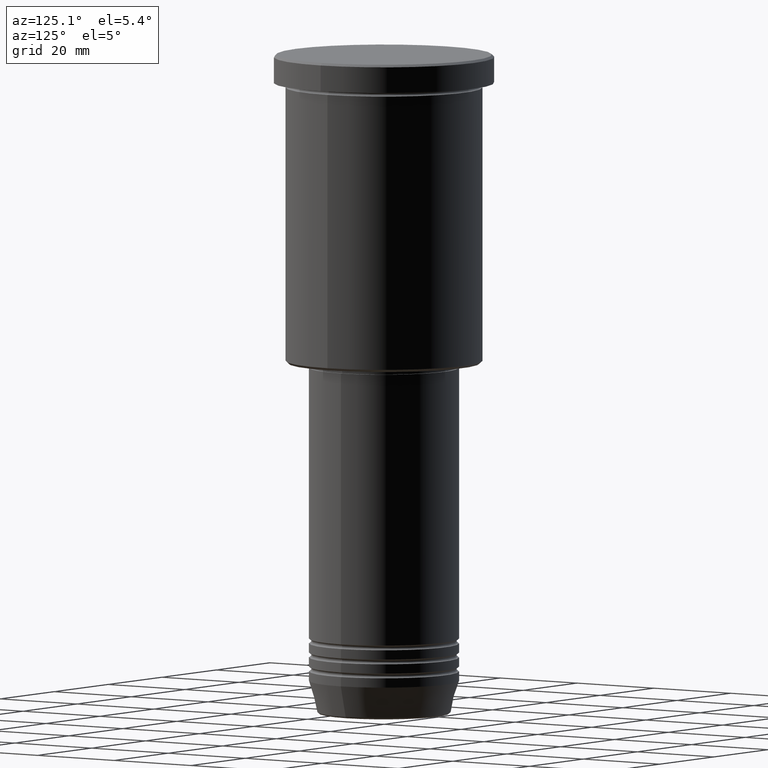
[diagram: clean part render]
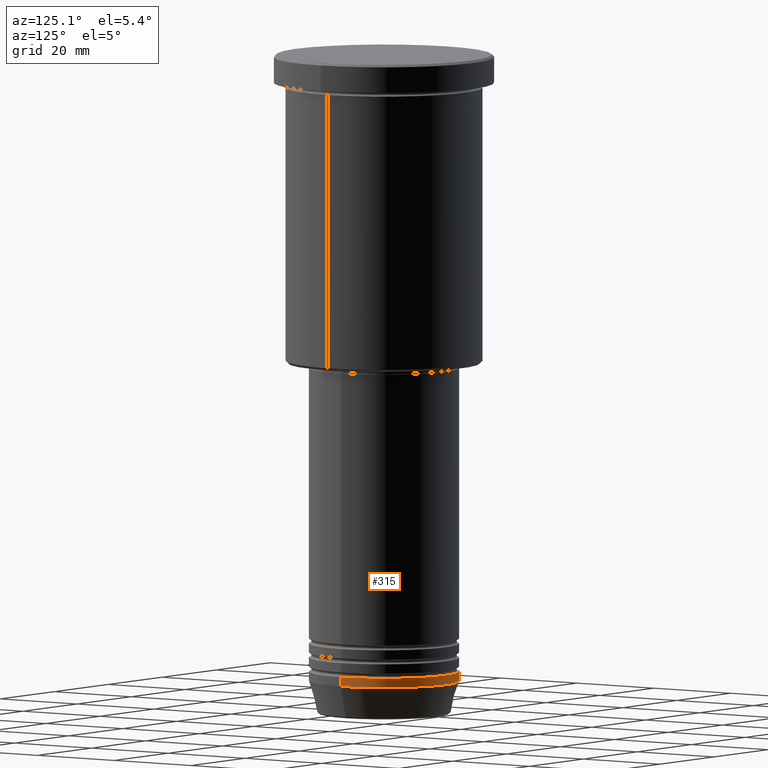
[diagram: same view with one face highlighted and labeled with its STEP entity id]
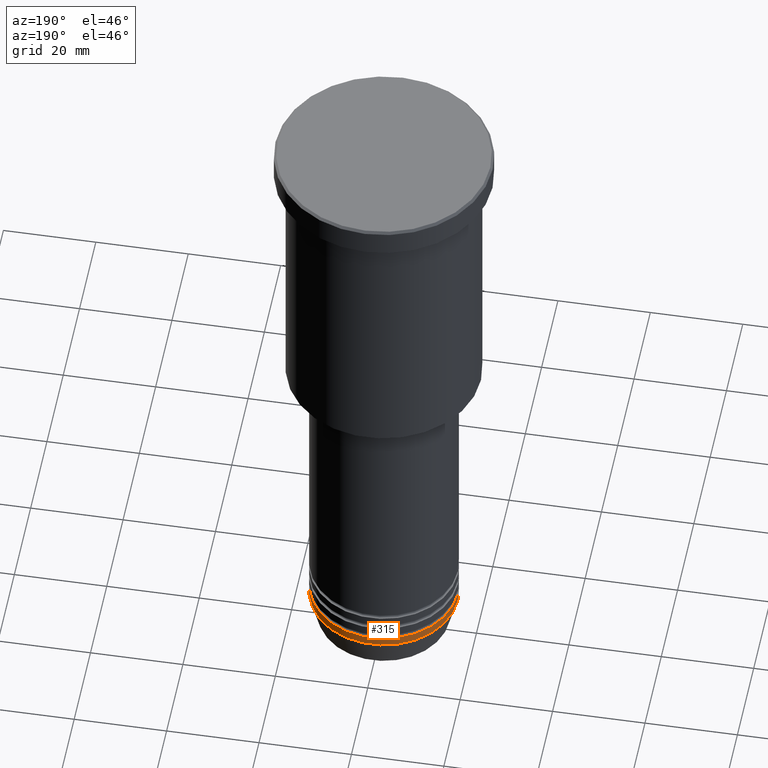
[diagram: same view with one face highlighted and labeled with its STEP entity id]
A machine part, auxiliary view. The second image highlights one B-rep face of the part: STEP entity #315.
A second angle (auxiliary view) of the same face is appended — the face is thin or edge-on in the first view.
In plain terms, the highlighted cylindrical surface (partial cylindrical patch) has radius 16 mm, axis along (-0, -0, 1).
Its self-contained STEP definition (entity closure, byte-faithful):
#8 = ORIENTED_EDGE ( 'NONE', *, *, #231, .F. ) ;
#28 = CIRCLE ( 'NONE', #589, 16.00000000000000000 ) ;
#67 = CARTESIAN_POINT ( 'NONE',  ( 16.00000000000000000, 0.000000000000000000, 0.000000000000000000 ) ) ;
#87 = CARTESIAN_POINT ( 'NONE',  ( -16.00000000000000000, 1.959434878635765131E-15, 0.000000000000000000 ) ) ;
#112 = LINE ( 'NONE', #87, #960 ) ;
#129 = CIRCLE ( 'NONE', #535, 16.00000000000000000 ) ;
#152 = DIRECTION ( 'NONE',  ( 1.000000000000000000, 0.000000000000000000, 0.000000000000000000 ) ) ;
#173 = VECTOR ( 'NONE', #1156, 1000.000000000000000 ) ;
#231 = EDGE_CURVE ( 'NONE', #1131, #297, #604, .T. ) ;
#252 = ORIENTED_EDGE ( 'NONE', *, *, #928, .F. ) ;
#297 = VERTEX_POINT ( 'NONE', #1018 ) ;
#298 = DIRECTION ( 'NONE',  ( 1.000000000000000000, 0.000000000000000000, 0.000000000000000000 ) ) ;
#312 = CARTESIAN_POINT ( 'NONE',  ( 16.00000000000000000, 0.000000000000000000, -134.0000000000000000 ) ) ;
#315 = ADVANCED_FACE ( 'NONE', ( #522 ), #345, .T. ) ;
#345 = CYLINDRICAL_SURFACE ( 'NONE', #395, 16.00000000000000000 ) ;
#354 = DIRECTION ( 'NONE',  ( -0.000000000000000000, -0.000000000000000000, 1.000000000000000000 ) ) ;
#395 = AXIS2_PLACEMENT_3D ( 'NONE', #446, #799, #152 ) ;
#446 = CARTESIAN_POINT ( 'NONE',  ( 0.000000000000000000, 0.000000000000000000, 0.000000000000000000 ) ) ;
#522 = FACE_OUTER_BOUND ( 'NONE', #634, .T. ) ;
#530 = EDGE_CURVE ( 'NONE', #992, #573, #112, .T. ) ;
#535 = AXIS2_PLACEMENT_3D ( 'NONE', #729, #926, #1014 ) ;
#573 = VERTEX_POINT ( 'NONE', #831 ) ;
#589 = AXIS2_PLACEMENT_3D ( 'NONE', #1048, #950, #298 ) ;
#604 = LINE ( 'NONE', #67, #173 ) ;
#634 = EDGE_LOOP ( 'NONE', ( #949, #849, #252, #8 ) ) ;
#729 = CARTESIAN_POINT ( 'NONE',  ( 0.000000000000000000, 0.000000000000000000, -132.0000000000000000 ) ) ;
#799 = DIRECTION ( 'NONE',  ( -0.000000000000000000, -0.000000000000000000, 1.000000000000000000 ) ) ;
#831 = CARTESIAN_POINT ( 'NONE',  ( -16.00000000000000000, 1.959434878635765131E-15, -132.0000000000000000 ) ) ;
#849 = ORIENTED_EDGE ( 'NONE', *, *, #530, .T. ) ;
#926 = DIRECTION ( 'NONE',  ( -0.000000000000000000, -0.000000000000000000, 1.000000000000000000 ) ) ;
#928 = EDGE_CURVE ( 'NONE', #297, #573, #129, .T. ) ;
#949 = ORIENTED_EDGE ( 'NONE', *, *, #1161, .T. ) ;
#950 = DIRECTION ( 'NONE',  ( -0.000000000000000000, -0.000000000000000000, 1.000000000000000000 ) ) ;
#960 = VECTOR ( 'NONE', #354, 1000.000000000000000 ) ;
#992 = VERTEX_POINT ( 'NONE', #1098 ) ;
#1014 = DIRECTION ( 'NONE',  ( 1.000000000000000000, 0.000000000000000000, 0.000000000000000000 ) ) ;
#1018 = CARTESIAN_POINT ( 'NONE',  ( 16.00000000000000000, 0.000000000000000000, -132.0000000000000000 ) ) ;
#1048 = CARTESIAN_POINT ( 'NONE',  ( 0.000000000000000000, 0.000000000000000000, -134.0000000000000000 ) ) ;
#1098 = CARTESIAN_POINT ( 'NONE',  ( -16.00000000000000000, 1.959434878635765131E-15, -134.0000000000000000 ) ) ;
#1131 = VERTEX_POINT ( 'NONE', #312 ) ;
#1156 = DIRECTION ( 'NONE',  ( -0.000000000000000000, -0.000000000000000000, 1.000000000000000000 ) ) ;
#1161 = EDGE_CURVE ( 'NONE', #1131, #992, #28, .T. ) ;